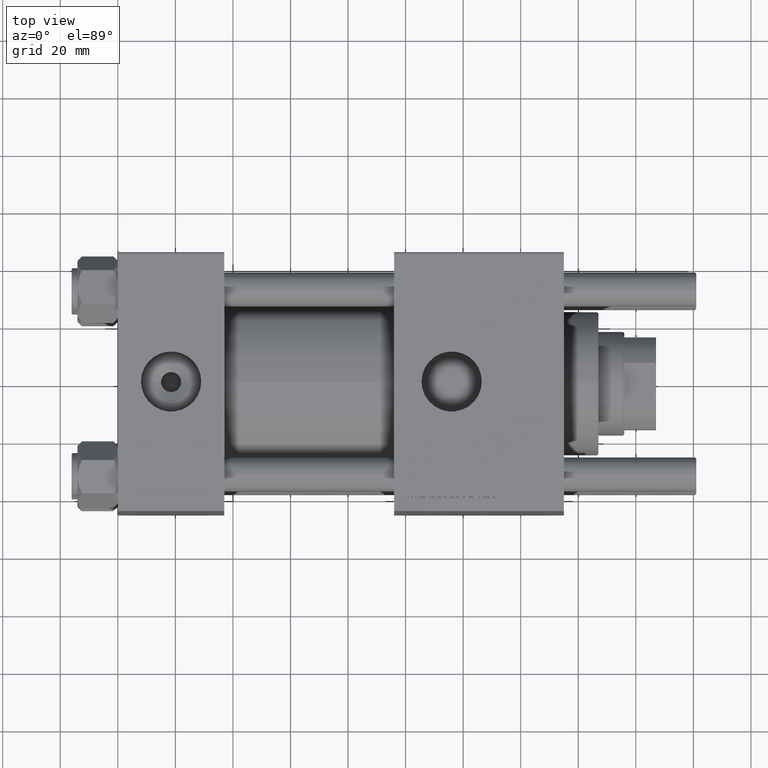
[diagram: clean part render]
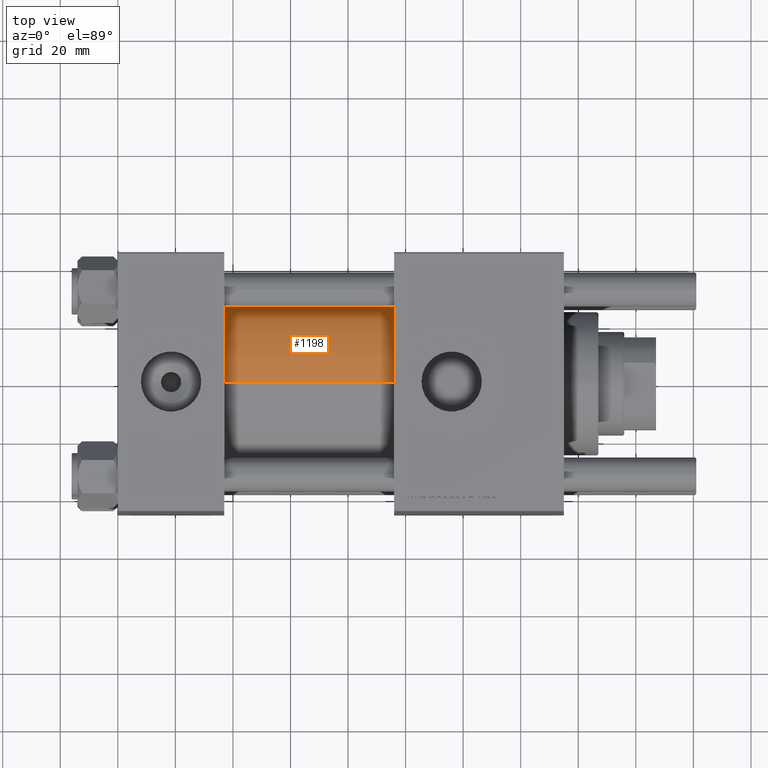
[diagram: same view with one face highlighted and labeled with its STEP entity id]
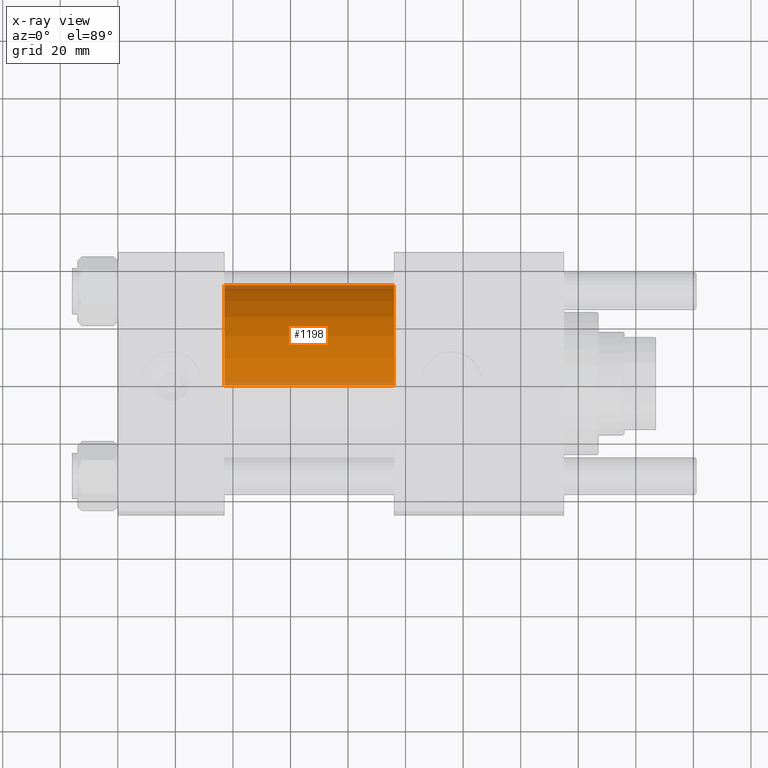
[diagram: x-ray of the same camera — body ghosted, the highlighted face saturated]
A machine part, top view. The second image highlights one B-rep face of the part: STEP entity #1198.
The next image is the same camera in x-ray: the body ghosted, the highlighted face saturated — about 7% of this face is hidden behind the body in this view.
In plain terms, the highlighted cylindrical surface (partial cylindrical patch) has radius 34.5 mm, axis along (-1, -0, -0).
Its self-contained STEP definition (entity closure, byte-faithful):
#1198 = ADVANCED_FACE ( 'NONE', ( #4039 ), #22097, .T. ) ;
#2995 = EDGE_CURVE ( 'NONE', #51520, #41296, #13157, .T. ) ;
#4039 = FACE_OUTER_BOUND ( 'NONE', #6259, .T. ) ;
#4060 = CARTESIAN_POINT ( 'NONE',  ( 96.00000000000000000, 1.622946243093158675E-15, -34.50000000000000000 ) ) ;
#4339 = CARTESIAN_POINT ( 'NONE',  ( 96.00000000000000000, -2.602085213965210642E-15, 0.000000000000000000 ) ) ;
#5785 = CARTESIAN_POINT ( 'NONE',  ( 96.00000000000000000, 1.622946243093158675E-15, -34.50000000000000000 ) ) ;
#6013 = ORIENTED_EDGE ( 'NONE', *, *, #2995, .F. ) ;
#6259 = EDGE_LOOP ( 'NONE', ( #34610, #9572, #24511, #6013 ) ) ;
#8244 = CIRCLE ( 'NONE', #30910, 34.50000000000000000 ) ;
#9572 = ORIENTED_EDGE ( 'NONE', *, *, #17882, .T. ) ;
#10869 = DIRECTION ( 'NONE',  ( 1.000000000000000000, 0.000000000000000000, 0.000000000000000000 ) ) ;
#12336 = DIRECTION ( 'NONE',  ( 0.000000000000000000, 0.000000000000000000, 1.000000000000000000 ) ) ;
#12490 = CARTESIAN_POINT ( 'NONE',  ( 37.00000000000000000, -2.602085213965210642E-15, 0.000000000000000000 ) ) ;
#13157 = LINE ( 'NONE', #17030, #23677 ) ;
#16731 = DIRECTION ( 'NONE',  ( -1.000000000000000000, -0.000000000000000000, -0.000000000000000000 ) ) ;
#17030 = CARTESIAN_POINT ( 'NONE',  ( 96.00000000000000000, -2.602085213965210642E-15, 34.50000000000000000 ) ) ;
#17091 = CARTESIAN_POINT ( 'NONE',  ( 37.00000000000000000, 1.622946243093158675E-15, -34.50000000000000000 ) ) ;
#17882 = EDGE_CURVE ( 'NONE', #57455, #25404, #46562, .T. ) ;
#18581 = AXIS2_PLACEMENT_3D ( 'NONE', #51348, #10869, #28912 ) ;
#19311 = VECTOR ( 'NONE', #37407, 1000.000000000000000 ) ;
#22097 = CYLINDRICAL_SURFACE ( 'NONE', #26436, 34.50000000000000000 ) ;
#22254 = DIRECTION ( 'NONE',  ( 0.000000000000000000, 0.000000000000000000, 1.000000000000000000 ) ) ;
#23677 = VECTOR ( 'NONE', #16731, 1000.000000000000000 ) ;
#24511 = ORIENTED_EDGE ( 'NONE', *, *, #26996, .T. ) ;
#25404 = VERTEX_POINT ( 'NONE', #17091 ) ;
#26436 = AXIS2_PLACEMENT_3D ( 'NONE', #4339, #40100, #12336 ) ;
#26996 = EDGE_CURVE ( 'NONE', #25404, #41296, #8244, .T. ) ;
#28912 = DIRECTION ( 'NONE',  ( 0.000000000000000000, 0.000000000000000000, -1.000000000000000000 ) ) ;
#30910 = AXIS2_PLACEMENT_3D ( 'NONE', #12490, #49717, #22254 ) ;
#34610 = ORIENTED_EDGE ( 'NONE', *, *, #47987, .F. ) ;
#36494 = CIRCLE ( 'NONE', #18581, 34.50000000000000000 ) ;
#37407 = DIRECTION ( 'NONE',  ( -1.000000000000000000, -0.000000000000000000, -0.000000000000000000 ) ) ;
#40100 = DIRECTION ( 'NONE',  ( -1.000000000000000000, -0.000000000000000000, -0.000000000000000000 ) ) ;
#41296 = VERTEX_POINT ( 'NONE', #44686 ) ;
#44686 = CARTESIAN_POINT ( 'NONE',  ( 37.00000000000000000, -2.602085213965210642E-15, 34.50000000000000000 ) ) ;
#46562 = LINE ( 'NONE', #5785, #19311 ) ;
#47987 = EDGE_CURVE ( 'NONE', #57455, #51520, #36494, .T. ) ;
#49289 = CARTESIAN_POINT ( 'NONE',  ( 96.00000000000000000, -2.602085213965210642E-15, 34.50000000000000000 ) ) ;
#49717 = DIRECTION ( 'NONE',  ( 1.000000000000000000, -0.000000000000000000, 0.000000000000000000 ) ) ;
#51348 = CARTESIAN_POINT ( 'NONE',  ( 96.00000000000000000, -2.602085213965210642E-15, 0.000000000000000000 ) ) ;
#51520 = VERTEX_POINT ( 'NONE', #49289 ) ;
#57455 = VERTEX_POINT ( 'NONE', #4060 ) ;